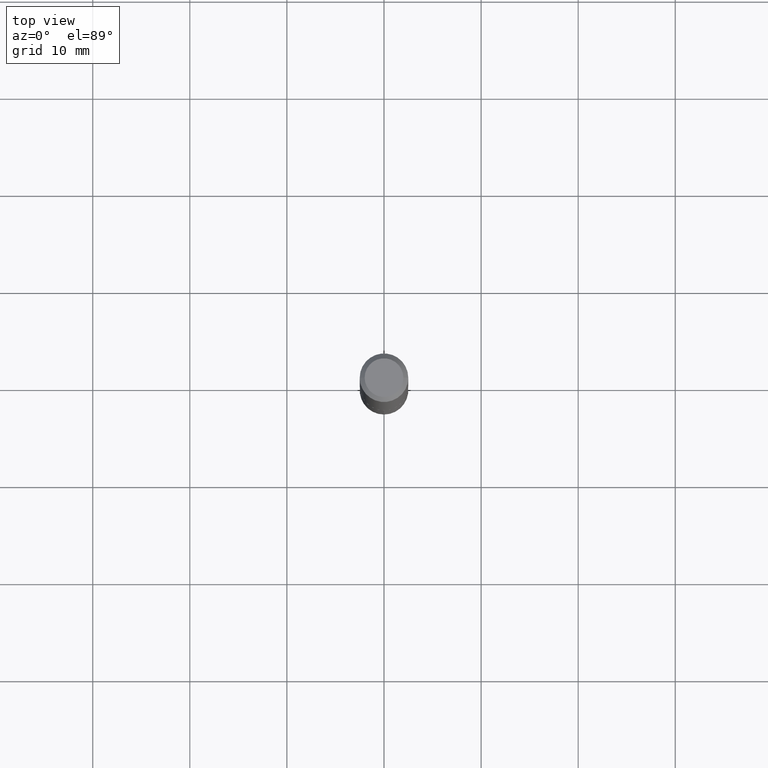
[diagram: clean part render]
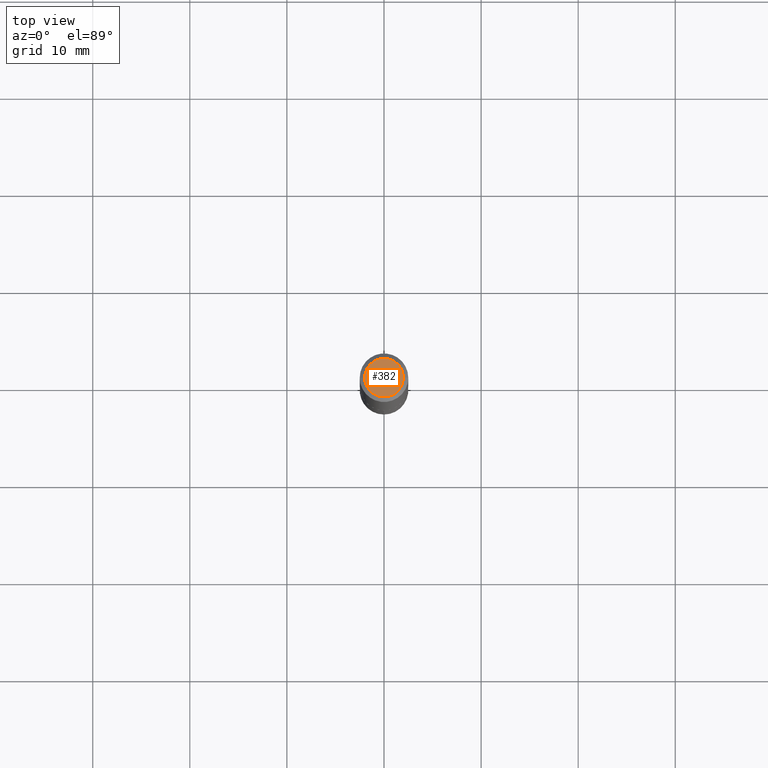
[diagram: same view with one face highlighted and labeled with its STEP entity id]
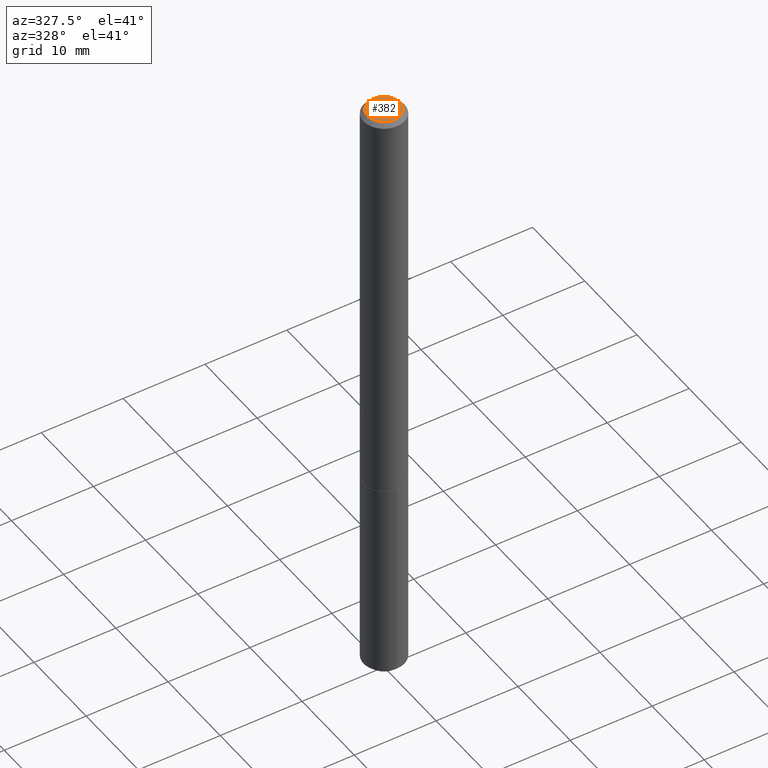
[diagram: same view with one face highlighted and labeled with its STEP entity id]
A machine part, top view. The second image highlights one B-rep face of the part: STEP entity #382.
A second angle (auxiliary view) of the same face is appended — the face is thin or edge-on in the first view.
In plain terms, the highlighted planar face has unit normal (0, -0, -1).
Its self-contained STEP definition (entity closure, byte-faithful):
#10 = CARTESIAN_POINT ( 'NONE',  ( 2.934938834991149716E-47, -4.190314816979048378E-33, -1.200153863164410111E-18 ) ) ;
#34 = CARTESIAN_POINT ( 'NONE',  ( 1.467469417495574858E-47, -2.095157408489524189E-33, -6.000769315822050554E-19 ) ) ;
#43 = PLANE ( 'NONE',  #105 ) ;
#71 = FACE_OUTER_BOUND ( 'NONE', #227, .T. ) ;
#78 = CARTESIAN_POINT ( 'NONE',  ( -0.07844999999999999196, 5.827282354529185989E-16, -1.200153863168363275E-18 ) ) ;
#103 = DIRECTION ( 'NONE',  ( 2.438088387897960049E-29, -3.491481338843145188E-15, -1.000000000000000000 ) ) ;
#105 = AXIS2_PLACEMENT_3D ( 'NONE', #34, #103, #350 ) ;
#108 = CARTESIAN_POINT ( 'NONE',  ( 0.07844999999999999196, -6.417258612913236232E-16, -1.200153863160251258E-18 ) ) ;
#124 = ORIENTED_EDGE ( 'NONE', *, *, #136, .T. ) ;
#131 = VERTEX_POINT ( 'NONE', #108 ) ;
#136 = EDGE_CURVE ( 'NONE', #393, #131, #309, .T. ) ;
#161 = AXIS2_PLACEMENT_3D ( 'NONE', #10, #365, #170 ) ;
#167 = DIRECTION ( 'NONE',  ( -2.445468806185136597E-29, 3.491481338843145583E-15, 1.000000000000000000 ) ) ;
#170 = DIRECTION ( 'NONE',  ( 1.000000000000000000, -6.982962677686266711E-15, 4.876126812019093667E-29 ) ) ;
#178 = CARTESIAN_POINT ( 'NONE',  ( 2.934938834991149716E-47, -4.190314816979048378E-33, -1.200153863164410111E-18 ) ) ;
#227 = EDGE_LOOP ( 'NONE', ( #124, #383 ) ) ;
#238 = EDGE_CURVE ( 'NONE', #131, #393, #344, .T. ) ;
#309 = CIRCLE ( 'NONE', #369, 0.07844999999999999196 ) ;
#344 = CIRCLE ( 'NONE', #161, 0.07844999999999999196 ) ;
#350 = DIRECTION ( 'NONE',  ( -1.000000000000000000, 6.982962677686265922E-15, -4.876176775795935793E-29 ) ) ;
#365 = DIRECTION ( 'NONE',  ( -2.445468806185136597E-29, 3.491481338843145583E-15, 1.000000000000000000 ) ) ;
#369 = AXIS2_PLACEMENT_3D ( 'NONE', #178, #167, #407 ) ;
#382 = ADVANCED_FACE ( 'NONE', ( #71 ), #43, .F. ) ;
#383 = ORIENTED_EDGE ( 'NONE', *, *, #238, .T. ) ;
#393 = VERTEX_POINT ( 'NONE', #78 ) ;
#407 = DIRECTION ( 'NONE',  ( 1.000000000000000000, -6.982962677686266711E-15, 4.876126812019093667E-29 ) ) ;